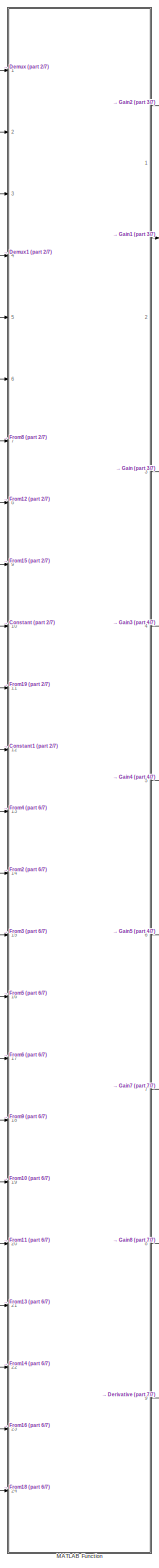
[diagram: root canvas - part 1/7, center side, full height]
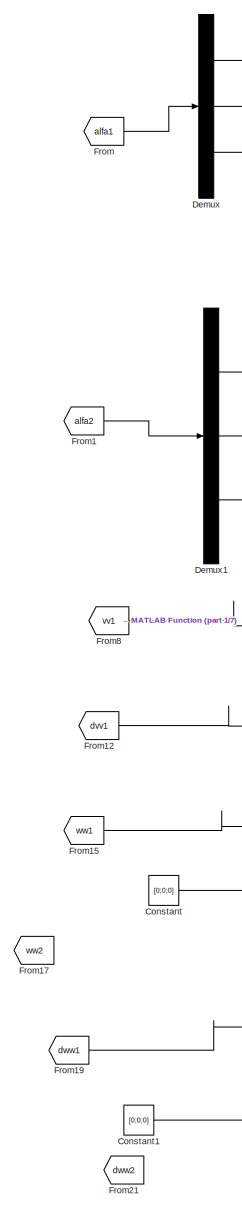
[diagram: root canvas - part 2/7, top center region]
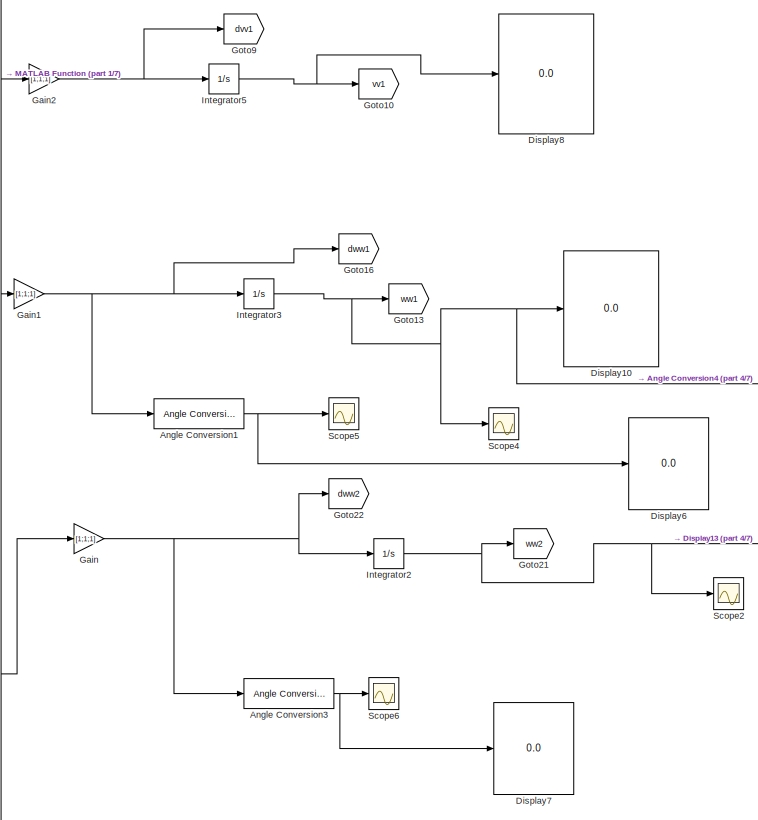
[diagram: root canvas - part 3/7, top right region]
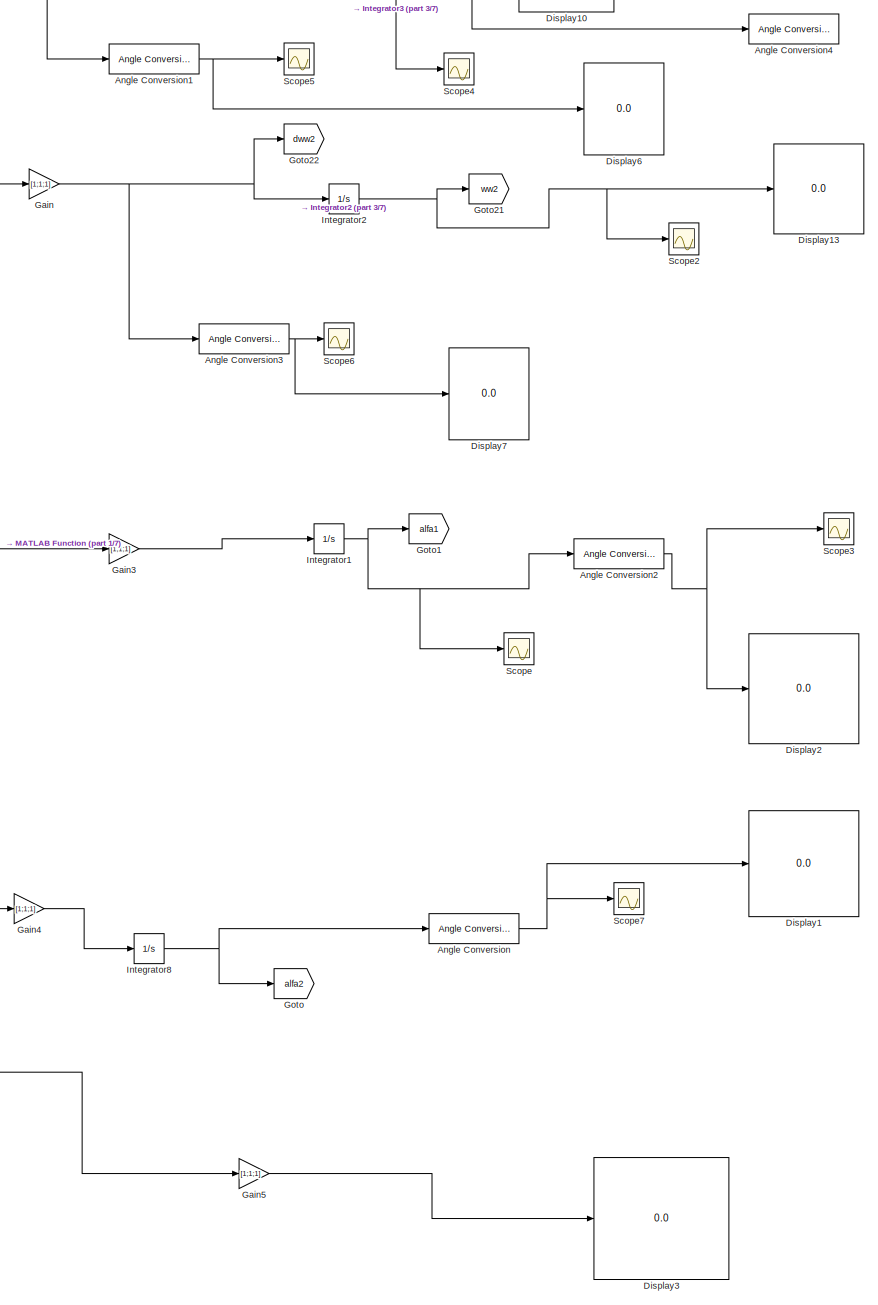
[diagram: root canvas - part 4/7, middle right region]
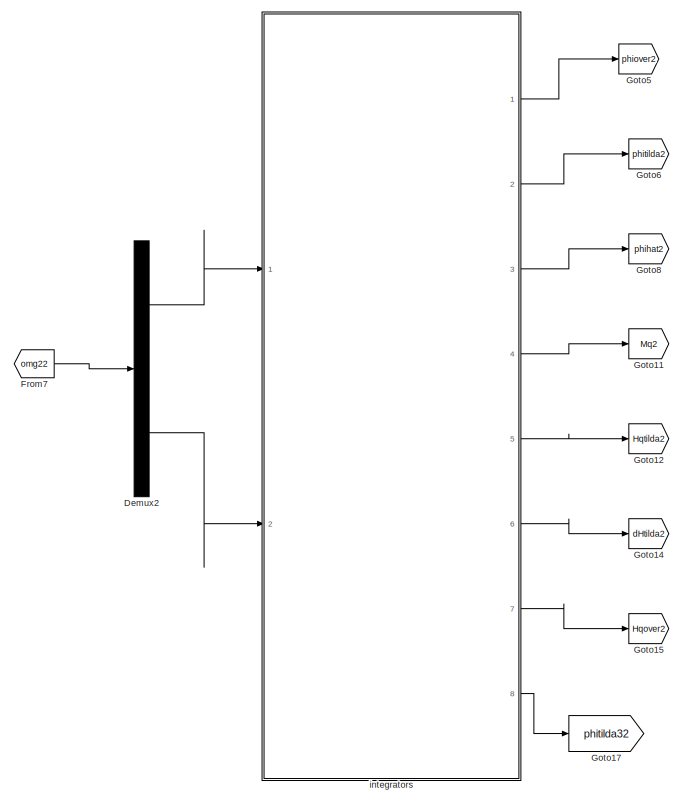
[diagram: root canvas - part 5/7, middle left region]
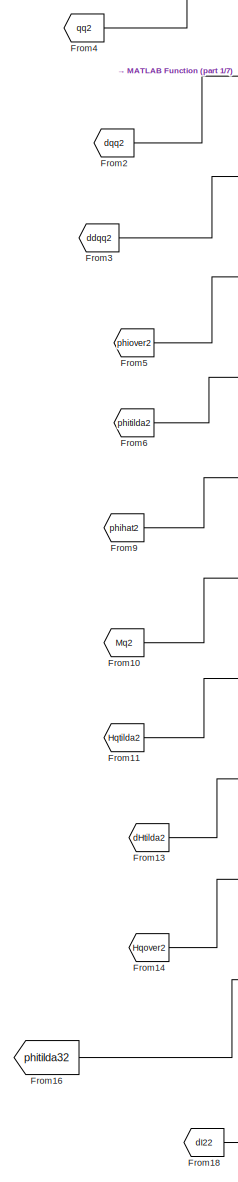
[diagram: root canvas - part 6/7, bottom center region]
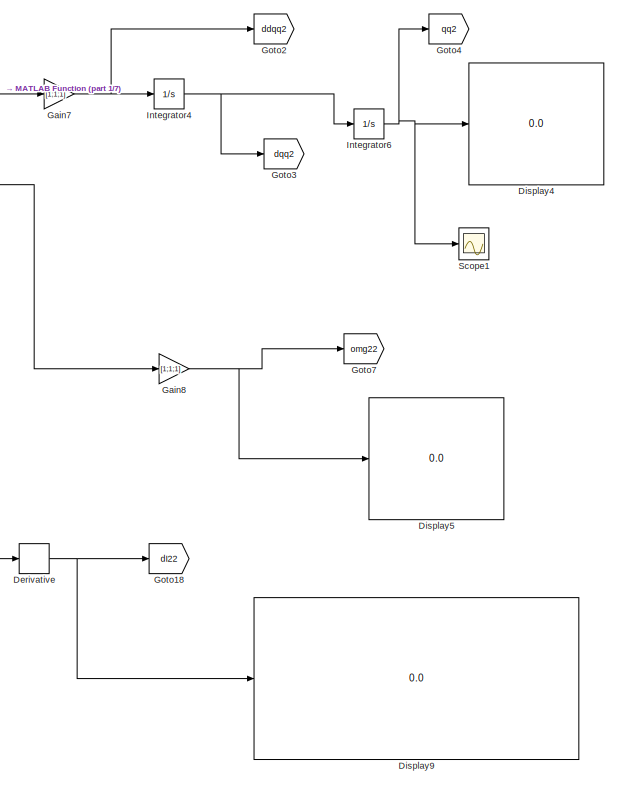
[diagram: root canvas - part 7/7, bottom right region]
MODEL slx_62e3d3bd543b
KIND model
CONFIG AbsTol = auto
CONFIG EnableMultiTasking = off
CONFIG FixedStep = 0.005
CONFIG MaxStep = auto
CONFIG MinStep = auto
CONFIG RelTol = 1e-3
CONFIG SampleTimeConstraint = Unconstrained
CONFIG Solver = ode4
CONFIG SolverName = ode4
CONFIG StartTime = 0.0
CONFIG StopTime = 10
BLOCK [Reference] Angle Conversion  REF=aerolibconvert2/Angle Conversion
  Ports = [1, 1]
  SourceBlock = aerolibconvert2/Angle Conversion
  SourceProductBaseCode = AE
  SourceProductName = Aerospace Blockset
  SourceType = Angle Conversion
BLOCK [Reference] Angle Conversion1  REF=aerolibconvert2/Angle Conversion
  Ports = [1, 1]
  SourceBlock = aerolibconvert2/Angle Conversion
  SourceProductBaseCode = AE
  SourceProductName = Aerospace Blockset
  SourceType = Angle Conversion
BLOCK [Reference] Angle Conversion2  REF=aerolibconvert2/Angle Conversion
  Ports = [1, 1]
  SourceBlock = aerolibconvert2/Angle Conversion
  SourceProductBaseCode = AE
  SourceProductName = Aerospace Blockset
  SourceType = Angle Conversion
BLOCK [Reference] Angle Conversion3  REF=aerolibconvert2/Angle Conversion
  Ports = [1, 1]
  SourceBlock = aerolibconvert2/Angle Conversion
  SourceProductBaseCode = AE
  SourceProductName = Aerospace Blockset
  SourceType = Angle Conversion
BLOCK [Reference] Angle Conversion4  REF=aerolibconvert2/Angle Conversion
  Ports = [1, 1]
  SourceBlock = aerolibconvert2/Angle Conversion
  SourceProductBaseCode = AE
  SourceProductName = Aerospace Blockset
  SourceType = Angle Conversion
BLOCK [Constant] Constant
  Value = [0;0;0]
BLOCK [Constant] Constant1
  Value = [0;0;0]
BLOCK [Demux] Demux
  DisplayOption = bar
  Outputs = 3
  Ports = [1, 3]
BLOCK [Demux] Demux1
  DisplayOption = bar
  Outputs = 3
  Ports = [1, 3]
BLOCK [Demux] Demux2
  DisplayOption = bar
  Outputs = 3
  Ports = [1, 3]
BLOCK [Derivative] Derivative
BLOCK [Display] Display1
  Decimation = 1
  Ports = [1]
BLOCK [Display] Display10
  Decimation = 1
  Ports = [1]
BLOCK [Display] Display13
  Decimation = 1
  Ports = [1]
BLOCK [Display] Display2
  Decimation = 1
  Ports = [1]
BLOCK [Display] Display3
  Decimation = 1
  Ports = [1]
BLOCK [Display] Display4
  Decimation = 1
  Ports = [1]
BLOCK [Display] Display5
  Decimation = 1
  Ports = [1]
BLOCK [Display] Display6
  Decimation = 1
  Ports = [1]
BLOCK [Display] Display7
  Decimation = 1
  Ports = [1]
BLOCK [Display] Display8
  Decimation = 1
  Ports = [1]
BLOCK [Display] Display9
  Decimation = 1
  Ports = [1]
BLOCK [From] From
  GotoTag = alfa1
  TagVisibility = global
BLOCK [From] From1
  GotoTag = alfa2
  TagVisibility = global
BLOCK [From] From10
  GotoTag = Mq2
  TagVisibility = global
BLOCK [From] From11
  GotoTag = Hqtilda2
  TagVisibility = global
BLOCK [From] From12
  GotoTag = dvv1
  TagVisibility = global
BLOCK [From] From13
  GotoTag = dHtilda2
  TagVisibility = global
BLOCK [From] From14
  GotoTag = Hqover2
  TagVisibility = global
BLOCK [From] From15
  GotoTag = ww1
  TagVisibility = global
BLOCK [From] From16
  GotoTag = phitilda32
  TagVisibility = global
BLOCK [From] From17
  GotoTag = ww2
  TagVisibility = global
BLOCK [From] From18
  GotoTag = dI22
  TagVisibility = global
BLOCK [From] From19
  GotoTag = dww1
  TagVisibility = global
BLOCK [From] From2
  GotoTag = dqq2
  TagVisibility = global
BLOCK [From] From21
  GotoTag = dww2
  TagVisibility = global
BLOCK [From] From3
  GotoTag = ddqq2
  TagVisibility = global
BLOCK [From] From4
  GotoTag = qq2
  TagVisibility = global
BLOCK [From] From5
  GotoTag = phiover2
  TagVisibility = global
BLOCK [From] From6
  GotoTag = phitilda2
  TagVisibility = global
BLOCK [From] From7
  GotoTag = omg22
  TagVisibility = global
BLOCK [From] From8
  GotoTag = vv1
  TagVisibility = global
BLOCK [From] From9
  GotoTag = phihat2
  TagVisibility = global
BLOCK [Gain] Gain
  Gain = [1;1;1]
  OutDataTypeStr = Inherit: Inherit via internal rule
  ParamDataTypeStr = Inherit: Inherit via internal rule
  SaturateOnIntegerOverflow = off
BLOCK [Gain] Gain1
  Gain = [1;1;1]
  OutDataTypeStr = Inherit: Inherit via internal rule
  ParamDataTypeStr = Inherit: Inherit via internal rule
  SaturateOnIntegerOverflow = off
BLOCK [Gain] Gain2
  Gain = [1;1;1]
  OutDataTypeStr = Inherit: Inherit via internal rule
  ParamDataTypeStr = Inherit: Inherit via internal rule
  SaturateOnIntegerOverflow = off
BLOCK [Gain] Gain3
  Gain = [1;1;1]
  OutDataTypeStr = Inherit: Inherit via internal rule
  ParamDataTypeStr = Inherit: Inherit via internal rule
  SaturateOnIntegerOverflow = off
BLOCK [Gain] Gain4
  Gain = [1;1;1]
  OutDataTypeStr = Inherit: Inherit via internal rule
  ParamDataTypeStr = Inherit: Inherit via internal rule
  SaturateOnIntegerOverflow = off
BLOCK [Gain] Gain5
  Gain = [1;1;1]
  OutDataTypeStr = Inherit: Inherit via internal rule
  ParamDataTypeStr = Inherit: Inherit via internal rule
  SaturateOnIntegerOverflow = off
BLOCK [Gain] Gain7
  Gain = [1;1;1]
  OutDataTypeStr = Inherit: Inherit via internal rule
  ParamDataTypeStr = Inherit: Inherit via internal rule
  SaturateOnIntegerOverflow = off
BLOCK [Gain] Gain8
  Gain = [1;1;1]
  OutDataTypeStr = Inherit: Inherit via internal rule
  ParamDataTypeStr = Inherit: Inherit via internal rule
  SaturateOnIntegerOverflow = off
BLOCK [Goto] Goto
  GotoTag = alfa2
  TagVisibility = global
BLOCK [Goto] Goto1
  GotoTag = alfa1
  TagVisibility = global
BLOCK [Goto] Goto10
  GotoTag = vv1
  TagVisibility = global
BLOCK [Goto] Goto11
  GotoTag = Mq2
  TagVisibility = global
BLOCK [Goto] Goto12
  GotoTag = Hqtilda2
  TagVisibility = global
BLOCK [Goto] Goto13
  GotoTag = ww1
  TagVisibility = global
BLOCK [Goto] Goto14
  GotoTag = dHtilda2
  TagVisibility = global
BLOCK [Goto] Goto15
  GotoTag = Hqover2
  TagVisibility = global
BLOCK [Goto] Goto16
  GotoTag = dww1
  TagVisibility = global
BLOCK [Goto] Goto17
  GotoTag = phitilda32
  TagVisibility = global
BLOCK [Goto] Goto18
  GotoTag = dI22
  TagVisibility = global
BLOCK [Goto] Goto2
  GotoTag = ddqq2
  TagVisibility = global
BLOCK [Goto] Goto21
  GotoTag = ww2
  TagVisibility = global
BLOCK [Goto] Goto22
  GotoTag = dww2
  TagVisibility = global
BLOCK [Goto] Goto3
  GotoTag = dqq2
  TagVisibility = global
BLOCK [Goto] Goto4
  GotoTag = qq2
  TagVisibility = global
BLOCK [Goto] Goto5
  GotoTag = phiover2
  TagVisibility = global
BLOCK [Goto] Goto6
  GotoTag = phitilda2
  TagVisibility = global
BLOCK [Goto] Goto7
  GotoTag = omg22
  TagVisibility = global
BLOCK [Goto] Goto8
  GotoTag = phihat2
  TagVisibility = global
BLOCK [Goto] Goto9
  GotoTag = dvv1
  TagVisibility = global
BLOCK [Integrator] Integrator1
  InitialCondition = [0;0;0]
  Ports = [1, 1]
BLOCK [Integrator] Integrator2
  InitialCondition = [0;0;0]
  Ports = [1, 1]
BLOCK [Integrator] Integrator3
  InitialCondition = [0;0;0]
  Ports = [1, 1]
BLOCK [Integrator] Integrator4
  InitialCondition = [0;0;0]
  Ports = [1, 1]
BLOCK [Integrator] Integrator5
  InitialCondition = [0;0;0]
  Ports = [1, 1]
BLOCK [Integrator] Integrator6
  InitialCondition = [0;0;0]
  Ports = [1, 1]
BLOCK [Integrator] Integrator8
  InitialCondition = [0;0;0]
  Ports = [1, 1]
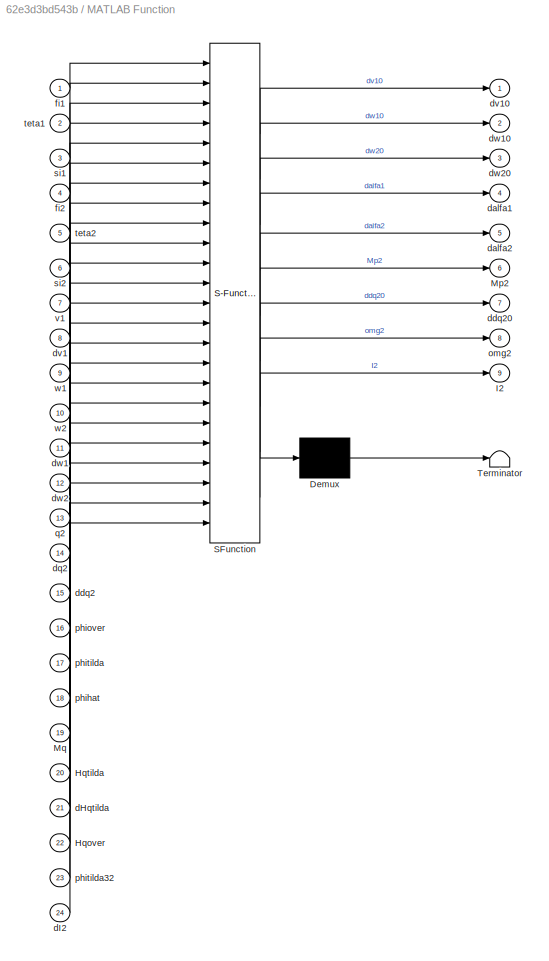
BLOCK [SubSystem] MATLAB Function
  ErrorFcn = Stateflow.Translate.translate
  PermitHierarchicalResolution = ExplicitOnly
  Ports = [24, 9]
  RequestExecContextInheritance = off
  SFBlockType = MATLAB Function
  TreatAsAtomicUnit = on
BLOCK [Demux] MATLAB Function/ Demux 
  Outputs = 1
  Ports = [1, 1]
BLOCK [S-Function] MATLAB Function/ SFunction 
  EnableBusSupport = on
  FunctionName = sf_sfun
  PortCounts = [24 10]
  Ports = [24, 10]
  SFcnIsStateOwnerBlock = off
  SFunctionDeploymentMode = off
  Tag = Stateflow S-Function Flexible_Spacecraft 2
BLOCK [Terminator] MATLAB Function/ Terminator 
BLOCK [Inport] MATLAB Function/Hqover
  IconDisplay = Port number
  Port = 22
BLOCK [Inport] MATLAB Function/Hqtilda
  IconDisplay = Port number
  Port = 20
BLOCK [Outport] MATLAB Function/I2
  IconDisplay = Port number
  Port = 9
BLOCK [Outport] MATLAB Function/Mp2
  IconDisplay = Port number
  Port = 6
BLOCK [Inport] MATLAB Function/Mq
  IconDisplay = Port number
  Port = 19
BLOCK [Inport] MATLAB Function/dHqtilda
  IconDisplay = Port number
  Port = 21
BLOCK [Inport] MATLAB Function/dI2
  IconDisplay = Port number
  Port = 24
BLOCK [Outport] MATLAB Function/dalfa1
  IconDisplay = Port number
  Port = 4
BLOCK [Outport] MATLAB Function/dalfa2
  IconDisplay = Port number
  Port = 5
BLOCK [Inport] MATLAB Function/ddq2
  IconDisplay = Port number
  Port = 15
BLOCK [Outport] MATLAB Function/ddq20
  IconDisplay = Port number
  Port = 7
BLOCK [Inport] MATLAB Function/dq2
  IconDisplay = Port number
  Port = 14
BLOCK [Inport] MATLAB Function/dv1
  IconDisplay = Port number
  Port = 8
BLOCK [Outport] MATLAB Function/dv10
  IconDisplay = Port number
BLOCK [Inport] MATLAB Function/dw1
  IconDisplay = Port number
  Port = 11
BLOCK [Outport] MATLAB Function/dw10
  IconDisplay = Port number
  Port = 2
BLOCK [Inport] MATLAB Function/dw2
  IconDisplay = Port number
  Port = 12
BLOCK [Outport] MATLAB Function/dw20
  IconDisplay = Port number
  Port = 3
BLOCK [Inport] MATLAB Function/fi1
  IconDisplay = Port number
BLOCK [Inport] MATLAB Function/fi2
  IconDisplay = Port number
  Port = 4
BLOCK [Outport] MATLAB Function/omg2
  IconDisplay = Port number
  Port = 8
BLOCK [Inport] MATLAB Function/phihat
  IconDisplay = Port number
  Port = 18
BLOCK [Inport] MATLAB Function/phiover
  IconDisplay = Port number
  Port = 16
BLOCK [Inport] MATLAB Function/phitilda
  IconDisplay = Port number
  Port = 17
BLOCK [Inport] MATLAB Function/phitilda32
  IconDisplay = Port number
  Port = 23
BLOCK [Inport] MATLAB Function/q2
  IconDisplay = Port number
  Port = 13
BLOCK [Inport] MATLAB Function/si1
  IconDisplay = Port number
  Port = 3
BLOCK [Inport] MATLAB Function/si2
  IconDisplay = Port number
  Port = 6
BLOCK [Inport] MATLAB Function/teta1
  IconDisplay = Port number
  Port = 2
BLOCK [Inport] MATLAB Function/teta2
  IconDisplay = Port number
  Port = 5
BLOCK [Inport] MATLAB Function/v1
  IconDisplay = Port number
  Port = 7
BLOCK [Inport] MATLAB Function/w1
  IconDisplay = Port number
  Port = 9
BLOCK [Inport] MATLAB Function/w2
  IconDisplay = Port number
  Port = 10
BLOCK [Scope] Scope
  Floating = off
  NumInputPorts = 1
  Ports = [1]
  ScopeSpecificationString = Simulink.scopes.TimeScopeBlockCfg('CurrentConfiguration', extmgr.ConfigurationSet(extmgr.Configuration('Core','General UI',true),extmgr.Configuration('Core','Source UI',true),extmgr.Configuration('Sources','WiredSimulink',true),extmgr.Configuration('Visuals','Time Domain',true,'SerializedDisplays',{struct('MinYLimReal','-0.41616','MaxYLimReal','3.74543','YLabelReal','','MinYLimMag','0.00000','MaxY...<+1440ch>
BLOCK [Scope] Scope1
  Floating = off
  NumInputPorts = 1
  Ports = [1]
  ScopeSpecificationString = Simulink.scopes.TimeScopeBlockCfg('CurrentConfiguration', extmgr.ConfigurationSet(extmgr.Configuration('Core','General UI',true),extmgr.Configuration('Core','Source UI',true),extmgr.Configuration('Sources','WiredSimulink',true,'DataLoggingVariableName','ScopeData1','DataLoggingLimitDataPoints',true,'DataLoggingSaveFormat','Array','DataLoggingDecimation','1','DataLoggingDecimateData',true),extmgr.C...<+1600ch>
BLOCK [Scope] Scope2
  Floating = off
  NumInputPorts = 1
  Ports = [1]
  ScopeSpecificationString = C++SS(StrPVP('SaveName','ScopeData2'),StrPVP('LimitDataPoints','on'),StrPVP('DataFormat','Array'),StrPVP('Decimation','1'),StrPVP('BlockParamSampleInput','off'))
BLOCK [Scope] Scope3
  Floating = off
  NumInputPorts = 1
  Ports = [1]
  ScopeSpecificationString = Simulink.scopes.TimeScopeBlockCfg('CurrentConfiguration', extmgr.ConfigurationSet(extmgr.Configuration('Core','General UI',true),extmgr.Configuration('Core','Source UI',true),extmgr.Configuration('Sources','WiredSimulink',true,'DataLoggingVariableName','ScopeData1','DataLoggingLimitDataPoints',true,'DataLoggingSaveFormat','Array','DataLoggingDecimation','1','DataLoggingDecimateData',true),extmgr.C...<+1576ch>
BLOCK [Scope] Scope4
  Floating = off
  NumInputPorts = 1
  Ports = [1]
  ScopeSpecificationString = Simulink.scopes.TimeScopeBlockCfg('CurrentConfiguration', extmgr.ConfigurationSet(extmgr.Configuration('Core','General UI',true),extmgr.Configuration('Core','Source UI',true),extmgr.Configuration('Sources','WiredSimulink',true,'DataLoggingVariableName','ScopeData3','DataLoggingLimitDataPoints',true,'DataLoggingSaveFormat','Array','DataLoggingDecimation','1','DataLoggingDecimateData',true),extmgr.C...<+1562ch>
BLOCK [Scope] Scope5
  Floating = off
  NumInputPorts = 1
  Ports = [1]
  ScopeSpecificationString = Simulink.scopes.TimeScopeBlockCfg('CurrentConfiguration', extmgr.ConfigurationSet(extmgr.Configuration('Core','General UI',true),extmgr.Configuration('Core','Source UI',true),extmgr.Configuration('Sources','WiredSimulink',true,'DataLoggingVariableName','ScopeData4'),extmgr.Configuration('Visuals','Time Domain',true,'SerializedDisplays',{struct('MinYLimReal','-0.32081','MaxYLimReal','2.88726','YLab...<+1495ch>
BLOCK [Scope] Scope6
  Floating = off
  NumInputPorts = 1
  Ports = [1]
  ScopeSpecificationString = Simulink.scopes.TimeScopeBlockCfg('CurrentConfiguration', extmgr.ConfigurationSet(extmgr.Configuration('Core','General UI',true),extmgr.Configuration('Core','Source UI',true),extmgr.Configuration('Sources','WiredSimulink',true,'DataLoggingVariableName','ScopeData5'),extmgr.Configuration('Visuals','Time Domain',true,'SerializedDisplays',{struct('MinYLimReal','-0.07805','MaxYLimReal','0.00867','YLab...<+1497ch>
BLOCK [Scope] Scope7
  Floating = off
  NumInputPorts = 1
  Ports = [1]
  ScopeSpecificationString = Simulink.scopes.TimeScopeBlockCfg('CurrentConfiguration', extmgr.ConfigurationSet(extmgr.Configuration('Core','General UI',true),extmgr.Configuration('Core','Source UI',true),extmgr.Configuration('Sources','WiredSimulink',true,'DataLoggingVariableName','ScopeData2'),extmgr.Configuration('Visuals','Time Domain',true,'SerializedDisplays',{struct('MinYLimReal','-147.92959','MaxYLimReal','154.76725','...<+1508ch>
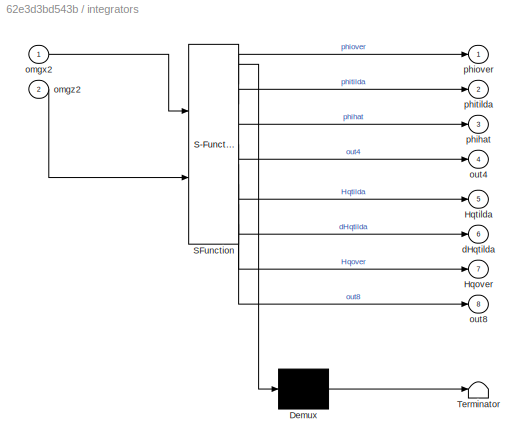
BLOCK [SubSystem] integrators
  ErrorFcn = Stateflow.Translate.translate
  PermitHierarchicalResolution = ExplicitOnly
  Ports = [2, 8]
  RequestExecContextInheritance = off
  SFBlockType = MATLAB Function
  TreatAsAtomicUnit = on
BLOCK [Demux] integrators/ Demux 
  Outputs = 1
  Ports = [1, 1]
BLOCK [S-Function] integrators/ SFunction 
  EnableBusSupport = on
  FunctionName = sf_sfun
  PortCounts = [2 9]
  Ports = [2, 9]
  SFcnIsStateOwnerBlock = off
  SFunctionDeploymentMode = off
  Tag = Stateflow S-Function Flexible_Spacecraft 1
BLOCK [Terminator] integrators/ Terminator 
BLOCK [Outport] integrators/Hqover
  IconDisplay = Port number
  Port = 7
BLOCK [Outport] integrators/Hqtilda
  IconDisplay = Port number
  Port = 5
BLOCK [Outport] integrators/dHqtilda
  IconDisplay = Port number
  Port = 6
BLOCK [Inport] integrators/omgx2
  IconDisplay = Port number
BLOCK [Inport] integrators/omgz2
  IconDisplay = Port number
  Port = 2
BLOCK [Outport] integrators/out4
  IconDisplay = Port number
  Port = 4
BLOCK [Outport] integrators/out8
  IconDisplay = Port number
  Port = 8
BLOCK [Outport] integrators/phihat
  IconDisplay = Port number
  Port = 3
BLOCK [Outport] integrators/phiover
  IconDisplay = Port number
BLOCK [Outport] integrators/phitilda
  IconDisplay = Port number
  Port = 2
NET Angle Conversion1:1 -> Display6:1, Scope5:1
NET Angle Conversion2:1 -> Display2:1, Scope3:1
NET Angle Conversion3:1 -> Display7:1, Scope6:1
NET Angle Conversion:1 -> Display1:1, Scope7:1
LINE Constant1:1 -> MATLAB Function:12
LINE Constant:1 -> MATLAB Function:10
LINE Demux1:1 -> MATLAB Function:4
LINE Demux1:2 -> MATLAB Function:5
LINE Demux1:3 -> MATLAB Function:6
LINE Demux2:1 -> integrators:1
LINE Demux2:3 -> integrators:2
LINE Demux:1 -> MATLAB Function:1
LINE Demux:2 -> MATLAB Function:2
LINE Demux:3 -> MATLAB Function:3
NET Derivative:1 -> Display9:1, Goto18:1
LINE From10:1 -> MATLAB Function:19
LINE From11:1 -> MATLAB Function:20
LINE From12:1 -> MATLAB Function:8
LINE From13:1 -> MATLAB Function:21
LINE From14:1 -> MATLAB Function:22
LINE From15:1 -> MATLAB Function:9
LINE From16:1 -> MATLAB Function:23
LINE From18:1 -> MATLAB Function:24
LINE From19:1 -> MATLAB Function:11
LINE From1:1 -> Demux1:1
LINE From2:1 -> MATLAB Function:14
LINE From3:1 -> MATLAB Function:15
LINE From4:1 -> MATLAB Function:13
LINE From5:1 -> MATLAB Function:16
LINE From6:1 -> MATLAB Function:17
LINE From7:1 -> Demux2:1
LINE From8:1 -> MATLAB Function:7
LINE From9:1 -> MATLAB Function:18
LINE From:1 -> Demux:1
NET Gain1:1 -> Angle Conversion1:1, Goto16:1, Integrator3:1
NET Gain2:1 -> Goto9:1, Integrator5:1
LINE Gain3:1 -> Integrator1:1
LINE Gain4:1 -> Integrator8:1
LINE Gain5:1 -> Display3:1
NET Gain7:1 -> Goto2:1, Integrator4:1
NET Gain8:1 -> Display5:1, Goto7:1
NET Gain:1 -> Angle Conversion3:1, Goto22:1, Integrator2:1
NET Integrator1:1 -> Angle Conversion2:1, Goto1:1, Scope:1
NET Integrator2:1 -> Display13:1, Goto21:1, Scope2:1
NET Integrator3:1 -> Angle Conversion4:1, Display10:1, Goto13:1, Scope4:1
NET Integrator4:1 -> Goto3:1, Integrator6:1
NET Integrator5:1 -> Display8:1, Goto10:1
NET Integrator6:1 -> Display4:1, Goto4:1, Scope1:1
NET Integrator8:1 -> Angle Conversion:1, Goto:1
LINE MATLAB Function:1 -> Gain2:1
LINE MATLAB Function:2 -> Gain1:1
LINE MATLAB Function:3 -> Gain:1
LINE MATLAB Function:4 -> Gain3:1
LINE MATLAB Function:5 -> Gain4:1
LINE MATLAB Function:6 -> Gain5:1
LINE MATLAB Function:7 -> Gain7:1
LINE MATLAB Function:8 -> Gain8:1
LINE MATLAB Function:9 -> Derivative:1
LINE integrators:1 -> Goto5:1
LINE integrators:2 -> Goto6:1
LINE integrators:3 -> Goto8:1
LINE integrators:4 -> Goto11:1
LINE integrators:5 -> Goto12:1
LINE integrators:6 -> Goto14:1
LINE integrators:7 -> Goto15:1
LINE integrators:8 -> Goto17:1
note: NET lines group one-source signal fan-out (src -> all destinations, sorted); 1:1 wires keep LINE
CHART integrators states=1 transitions=1
  STATE_LABEL 'eML_blk_kernel()'
  STATE_LABEL 'SCRIPT:\nfunction [phiover,phitilda,phihat,out4,Hqtilda,dHqtilda,Hqover,out8] = integrators(omgx2,omgz2)\n%#codegen\n\n%    This function was generated by the Symbolic Math Toolbox version 7.1.\n%    26-Feb-2017 23:02:28\n\nphiover = reshape([0.0,0.0,0.0,0.0,-6.377876326171868,0.0,0.0,0.0,0.0],[3,3]);\nif nargout > 1\n    phitilda = reshape([0.0,0.0,0.0,0.0,0.0,-1.075141769112719e1,0.0,0.0,0.0],[3,3]);\nend...<+490ch>'
CHART MATLAB Function states=1 transitions=1
  STATE_LABEL 'eML_blk_kernel()'
  STATE_LABEL 'SCRIPT:\nfunction [dv10,dw10,dw20,dalfa1,dalfa2,Mp2,ddq20,omg2,I2] = fcn(fi1,teta1,si1,fi2,teta2,si2,v1,dv1,w1,w2,dw1,dw2,q2,dq2,ddq2,phiover,phitilda,phihat,Mq,Hqtilda,dHqtilda,Hqover,phitilda32,dI2)\n\nC10=[cos(teta1)*cos(si1) cos(fi1)*sin(si1)+sin(fi1)*sin(teta1)*cos(si1) sin(fi1)*sin(si1)-cos(fi1)*sin(teta1)*cos(si1);-cos(teta1)*sin(si1) cos(fi1)*cos(si1)-sin(fi1)*sin(teta1)*sin(si1) sin(fi1)*cos...<+2549ch>'
